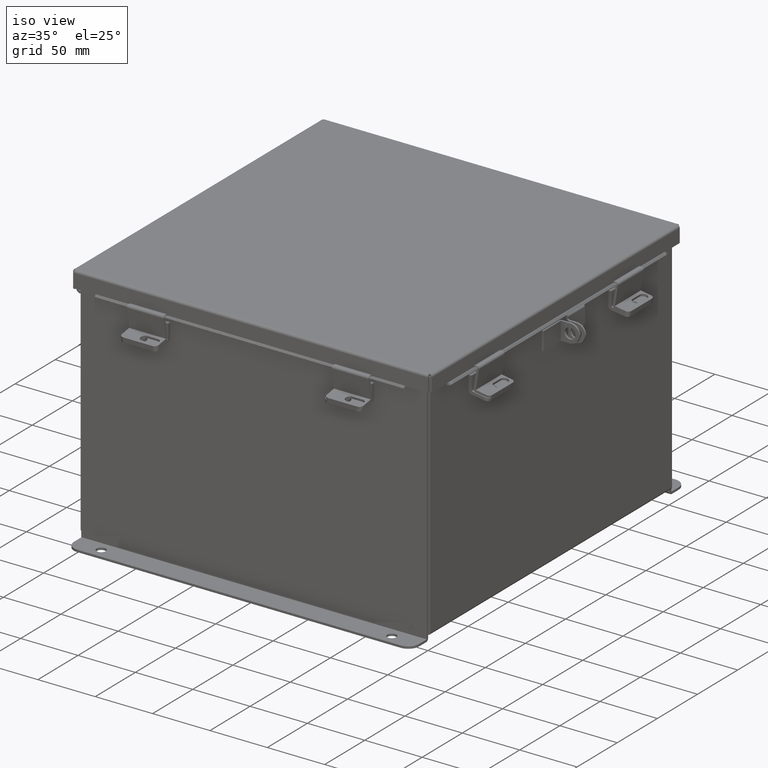
[diagram: clean part render]
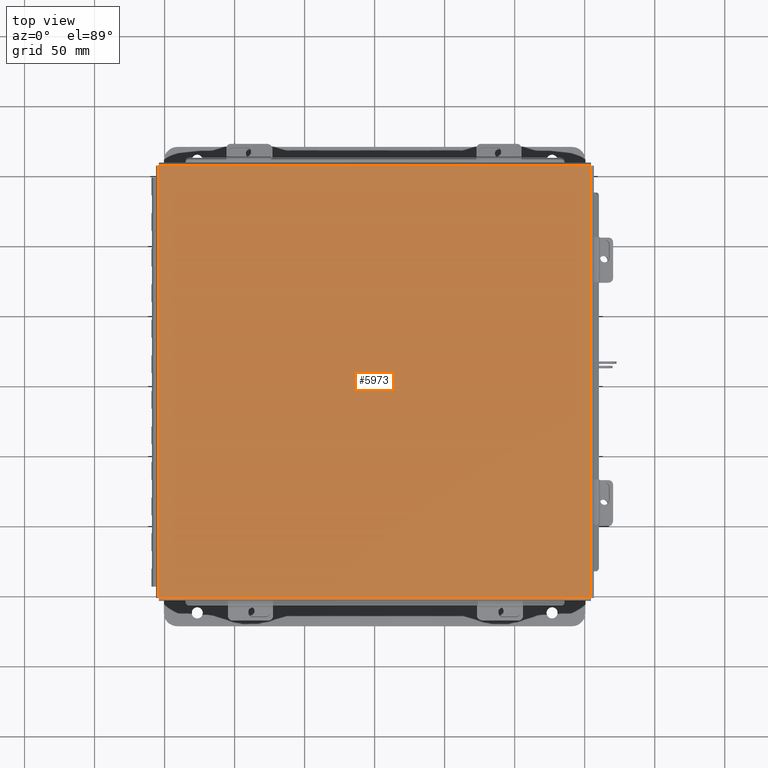
[diagram: tour spotlight — one face highlighted and labeled with its STEP entity id]
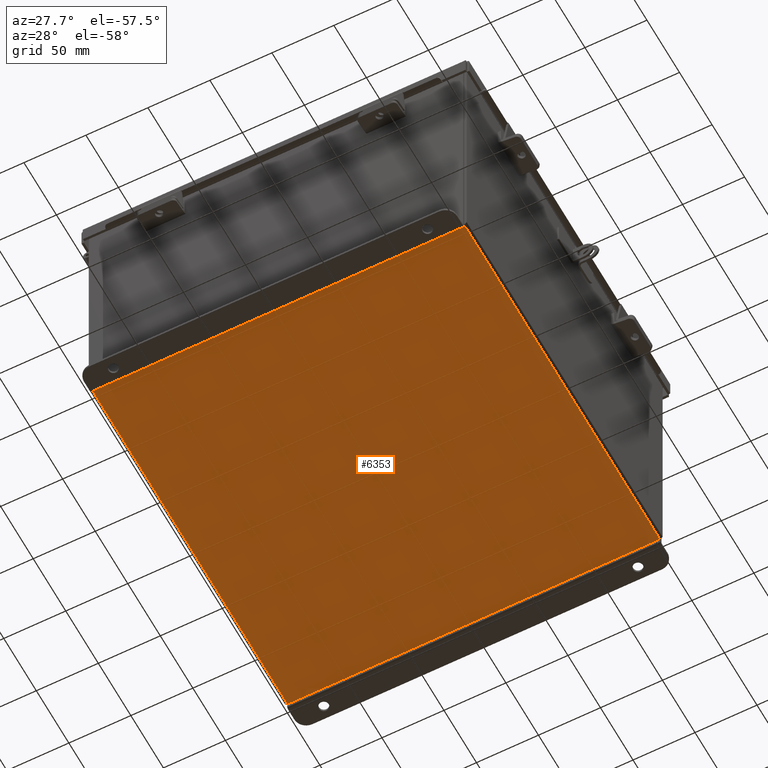
[diagram: tour spotlight — one face highlighted and labeled with its STEP entity id]
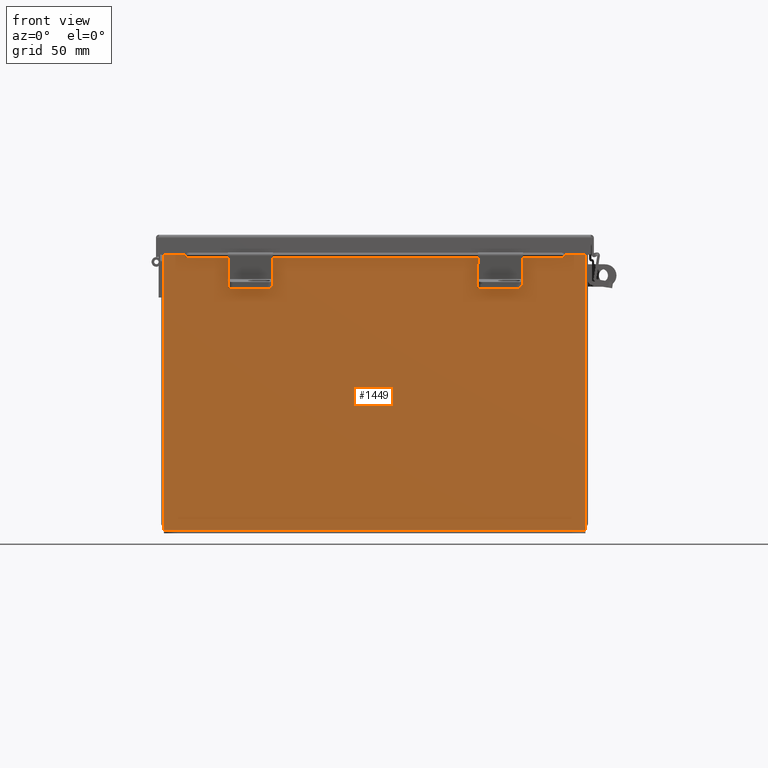
[diagram: tour spotlight — one face highlighted and labeled with its STEP entity id]
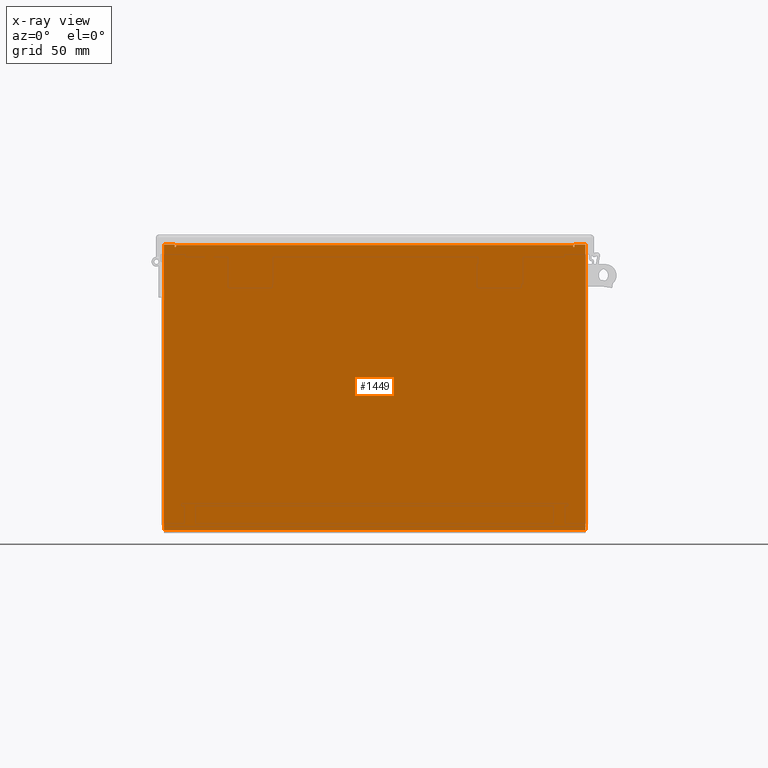
[diagram: x-ray of the same camera — body ghosted, this tour face saturated]
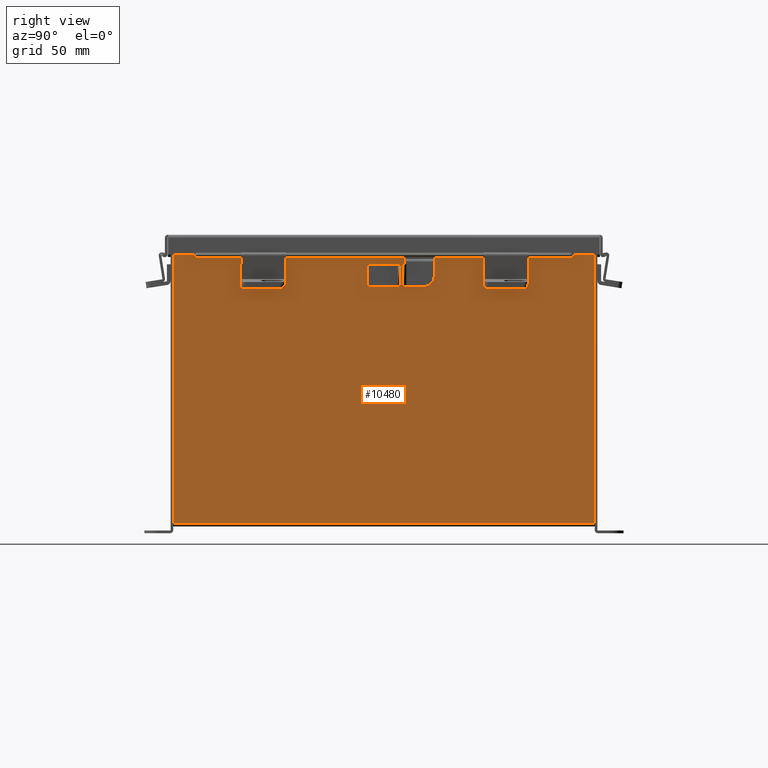
[diagram: tour spotlight — one face highlighted and labeled with its STEP entity id]
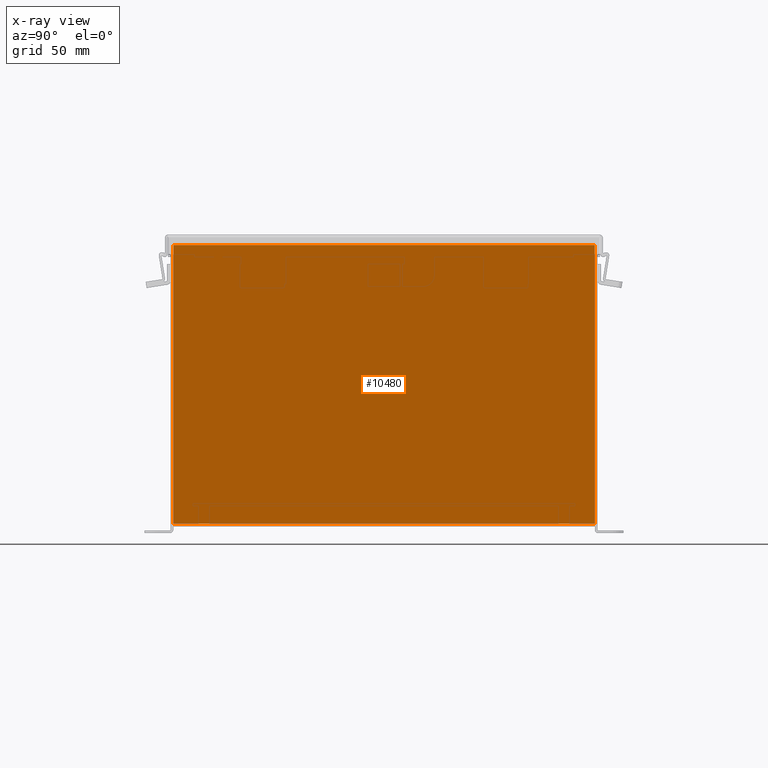
[diagram: x-ray of the same camera — body ghosted, this tour face saturated]
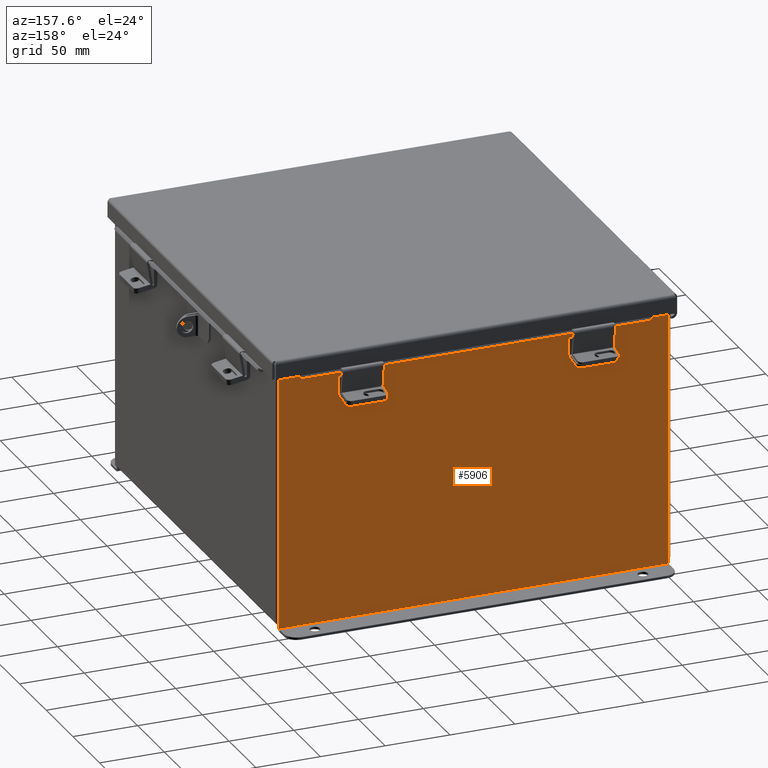
[diagram: tour spotlight — one face highlighted and labeled with its STEP entity id]
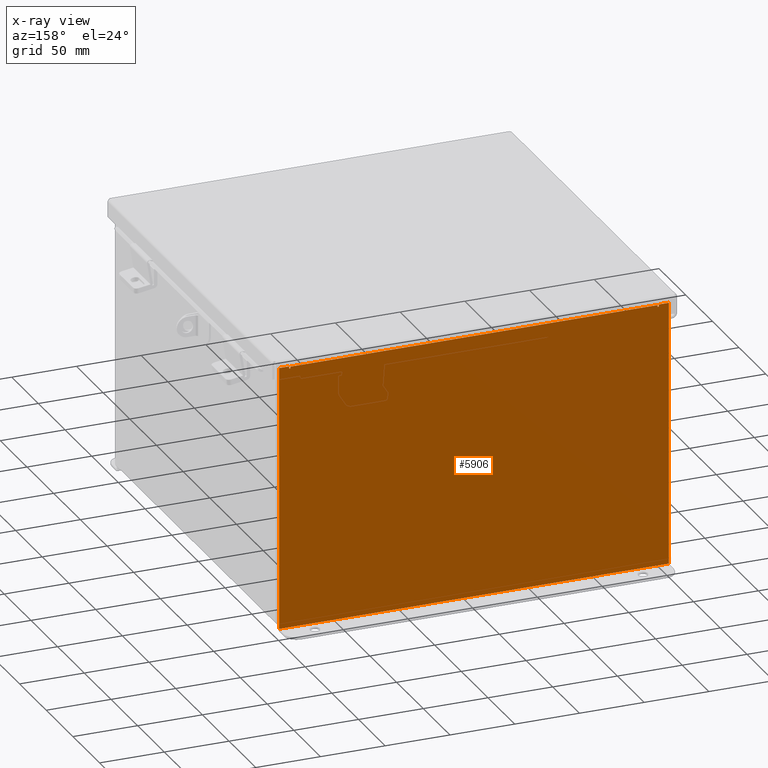
[diagram: x-ray of the same camera — body ghosted, this tour face saturated]
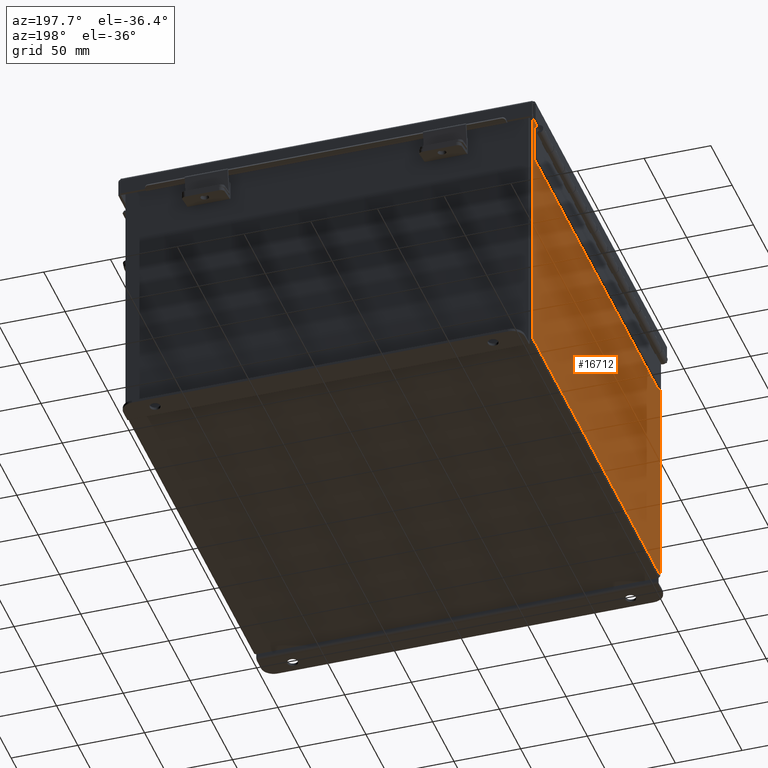
[diagram: tour spotlight — one face highlighted and labeled with its STEP entity id]
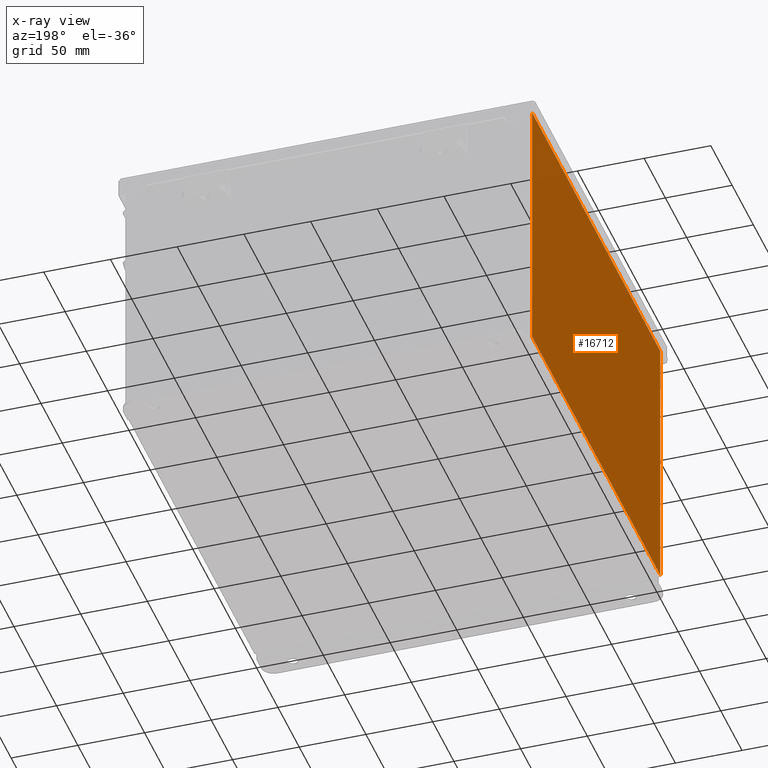
[diagram: x-ray of the same camera — body ghosted, this tour face saturated]
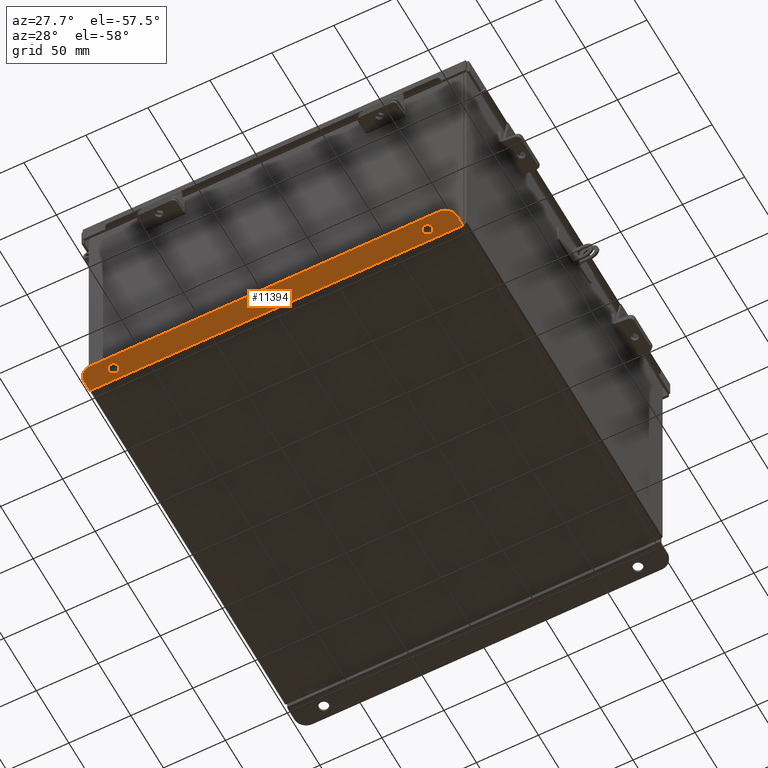
[diagram: tour spotlight — one face highlighted and labeled with its STEP entity id]
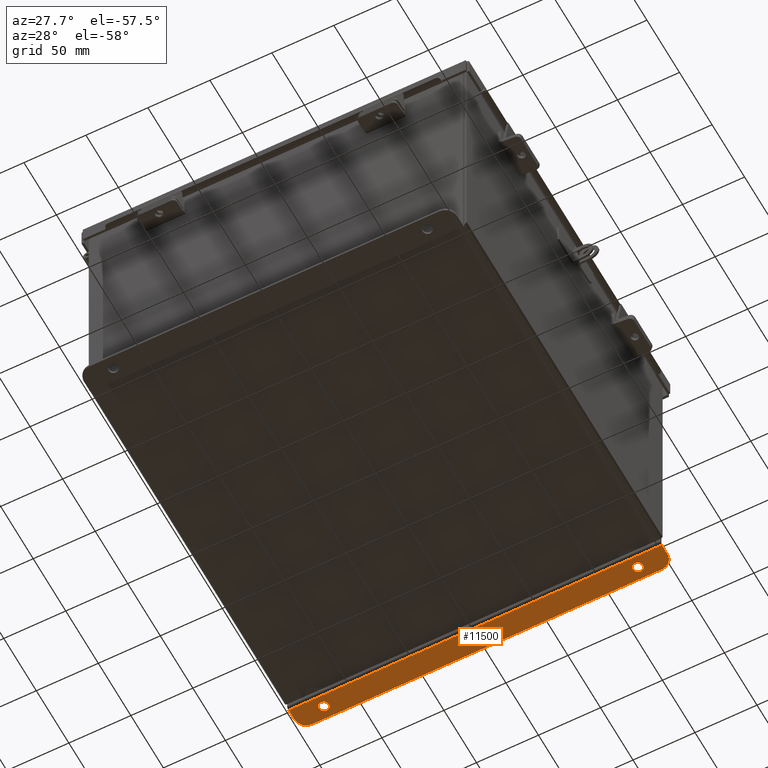
[diagram: tour spotlight — one face highlighted and labeled with its STEP entity id]
A machine part: a face-by-face anatomy tour. The part has 774 B-rep faces; the first image is the clean iso view, then the 8 largest visible faces are spotlighted one at a time (largest first), each with its STEP entity span.

Face 1 — top view, entity #5973. In plain terms, the highlighted planar face has unit normal (-0, -0, 1).
Definition (entity closure, byte-faithful):
#232 = PLANE ( 'NONE',  #12020 ) ;
#362 = FACE_OUTER_BOUND ( 'NONE', #6355, .T. ) ;
#1324 = EDGE_CURVE ( 'NONE', #12748, #10533, #4740, .T. ) ;
#1585 = DIRECTION ( 'NONE',  ( 0.0000000000000000000, 0.0000000000000000000, -1.000000000000000000 ) ) ;
#2104 = CARTESIAN_POINT ( 'NONE',  ( 6.068550000000000100, 6.074478932188137400, -0.07469999999999994700 ) ) ;
#2284 = LINE ( 'NONE', #3832, #16257 ) ;
#3601 = CARTESIAN_POINT ( 'NONE',  ( -6.074478932188137400, 6.068550000000000100, -0.07469999999999993300 ) ) ;
#3832 = CARTESIAN_POINT ( 'NONE',  ( -6.068550000000000100, -6.074478932188137400, -0.07469999999999993300 ) ) ;
#4740 = LINE ( 'NONE', #2104, #11085 ) ;
#5973 = ADVANCED_FACE ( 'NONE', ( #362 ), #232, .T. ) ;
#6157 = VECTOR ( 'NONE', #15780, 39.37007874015748100 ) ;
#6182 = DIRECTION ( 'NONE',  ( -1.000000000000000000, 0.0000000000000000000, 0.0000000000000000000 ) ) ;
#6206 = LINE ( 'NONE', #7550, #16570 ) ;
#6355 = EDGE_LOOP ( 'NONE', ( #14553, #8966, #7889, #7382 ) ) ;
#7382 = ORIENTED_EDGE ( 'NONE', *, *, #15633, .T. ) ;
#7550 = CARTESIAN_POINT ( 'NONE',  ( 6.074478932188137400, -6.068550000000000100, -0.07469999999999993300 ) ) ;
#7889 = ORIENTED_EDGE ( 'NONE', *, *, #9377, .T. ) ;
#8864 = DIRECTION ( 'NONE',  ( -0.0000000000000000000, -1.000000000000000000, -0.0000000000000000000 ) ) ;
#8966 = ORIENTED_EDGE ( 'NONE', *, *, #1324, .T. ) ;
#9377 = EDGE_CURVE ( 'NONE', #10533, #15985, #6206, .T. ) ;
#10179 = LINE ( 'NONE', #3601, #6157 ) ;
#10220 = CARTESIAN_POINT ( 'NONE',  ( 6.068550000000000100, 6.068550000000000100, -0.07469999999999994700 ) ) ;
#10533 = VERTEX_POINT ( 'NONE', #11225 ) ;
#10844 = EDGE_CURVE ( 'NONE', #16858, #12748, #10179, .T. ) ;
#11064 = DIRECTION ( 'NONE',  ( -1.000000000000000000, 0.0000000000000000000, -0.0000000000000000000 ) ) ;
#11085 = VECTOR ( 'NONE', #8864, 39.37007874015748100 ) ;
#11225 = CARTESIAN_POINT ( 'NONE',  ( 6.068550000000000100, -6.068550000000000100, -0.07469999999999993300 ) ) ;
#11264 = CARTESIAN_POINT ( 'NONE',  ( -6.068550000000000100, -6.068550000000000100, -0.07469999999999993300 ) ) ;
#12020 = AXIS2_PLACEMENT_3D ( 'NONE', #13720, #1585, #11064 ) ;
#12748 = VERTEX_POINT ( 'NONE', #10220 ) ;
#12904 = CARTESIAN_POINT ( 'NONE',  ( -6.068550000000000100, 6.068550000000000100, -0.07469999999999993300 ) ) ;
#13720 = CARTESIAN_POINT ( 'NONE',  ( 0.0000000000000000000, 0.0000000000000000000, -0.07470000000000000300 ) ) ;
#14553 = ORIENTED_EDGE ( 'NONE', *, *, #10844, .T. ) ;
#14647 = DIRECTION ( 'NONE',  ( -0.0000000000000000000, 1.000000000000000000, -0.0000000000000000000 ) ) ;
#15633 = EDGE_CURVE ( 'NONE', #15985, #16858, #2284, .T. ) ;
#15780 = DIRECTION ( 'NONE',  ( 1.000000000000000000, 0.0000000000000000000, 0.0000000000000000000 ) ) ;
#15985 = VERTEX_POINT ( 'NONE', #11264 ) ;
#16257 = VECTOR ( 'NONE', #14647, 39.37007874015748100 ) ;
#16570 = VECTOR ( 'NONE', #6182, 39.37007874015748100 ) ;
#16858 = VERTEX_POINT ( 'NONE', #12904 ) ;

Face 2 — auxiliary view, entity #6353. In plain terms, the highlighted planar face has unit normal (0, 0, -1).
Definition (entity closure, byte-faithful):
#281 = CARTESIAN_POINT ( 'NONE',  ( 5.912300000000002800, 5.925299999999997300, -0.07469999999999994700 ) ) ;
#510 = LINE ( 'NONE', #14644, #14489 ) ;
#2279 = AXIS2_PLACEMENT_3D ( 'NONE', #11233, #13998, #5905 ) ;
#2299 = EDGE_CURVE ( 'NONE', #12551, #9221, #17333, .T. ) ;
#4374 = EDGE_CURVE ( 'NONE', #4593, #9221, #4552, .T. ) ;
#4538 = PLANE ( 'NONE',  #2279 ) ;
#4552 = LINE ( 'NONE', #14986, #10906 ) ;
#4584 = CARTESIAN_POINT ( 'NONE',  ( -5.912299999999998300, 5.925300000000000000, -0.07470000000000000300 ) ) ;
#4593 = VERTEX_POINT ( 'NONE', #8705 ) ;
#4705 = ORIENTED_EDGE ( 'NONE', *, *, #14793, .F. ) ;
#5761 = ORIENTED_EDGE ( 'NONE', *, *, #8545, .T. ) ;
#5905 = DIRECTION ( 'NONE',  ( -1.000000000000000000, 0.0000000000000000000, -0.0000000000000000000 ) ) ;
#6353 = ADVANCED_FACE ( 'NONE', ( #9236 ), #4538, .T. ) ;
#6893 = DIRECTION ( 'NONE',  ( -0.0000000000000000000, 1.000000000000000000, -0.0000000000000000000 ) ) ;
#7399 = VECTOR ( 'NONE', #7906, 39.37007874015748100 ) ;
#7906 = DIRECTION ( 'NONE',  ( 1.000000000000000000, 0.0000000000000000000, 0.0000000000000000000 ) ) ;
#8545 = EDGE_CURVE ( 'NONE', #12551, #17033, #510, .T. ) ;
#8705 = CARTESIAN_POINT ( 'NONE',  ( -5.912299999999998300, -5.925299999999999100, -0.07469999999999994700 ) ) ;
#8782 = CARTESIAN_POINT ( 'NONE',  ( -5.999999999999998200, 5.925300000000000000, -0.07470000000000000300 ) ) ;
#9221 = VERTEX_POINT ( 'NONE', #4584 ) ;
#9236 = FACE_OUTER_BOUND ( 'NONE', #16554, .T. ) ;
#10906 = VECTOR ( 'NONE', #6893, 39.37007874015748100 ) ;
#11233 = CARTESIAN_POINT ( 'NONE',  ( 0.0000000000000000000, 0.0000000000000000000, -0.07470000000000000300 ) ) ;
#12551 = VERTEX_POINT ( 'NONE', #281 ) ;
#13714 = VECTOR ( 'NONE', #15515, 39.37007874015748100 ) ;
#13998 = DIRECTION ( 'NONE',  ( 0.0000000000000000000, 0.0000000000000000000, -1.000000000000000000 ) ) ;
#14171 = LINE ( 'NONE', #17381, #7399 ) ;
#14489 = VECTOR ( 'NONE', #16013, 39.37007874015748100 ) ;
#14644 = CARTESIAN_POINT ( 'NONE',  ( 5.912300000000002800, 5.925300000000000000, -0.07469999999999994700 ) ) ;
#14793 = EDGE_CURVE ( 'NONE', #4593, #17033, #14171, .T. ) ;
#14986 = CARTESIAN_POINT ( 'NONE',  ( -5.912299999999998300, -5.925300000000000000, -0.07469999999999994700 ) ) ;
#15515 = DIRECTION ( 'NONE',  ( -1.000000000000000000, -0.0000000000000000000, -0.0000000000000000000 ) ) ;
#16013 = DIRECTION ( 'NONE',  ( -0.0000000000000000000, -1.000000000000000000, -0.0000000000000000000 ) ) ;
#16038 = CARTESIAN_POINT ( 'NONE',  ( 5.912300000000002800, -5.925300000000000000, -0.07470000000000000300 ) ) ;
#16087 = ORIENTED_EDGE ( 'NONE', *, *, #4374, .T. ) ;
#16554 = EDGE_LOOP ( 'NONE', ( #17082, #5761, #4705, #16087 ) ) ;
#17033 = VERTEX_POINT ( 'NONE', #16038 ) ;
#17082 = ORIENTED_EDGE ( 'NONE', *, *, #2299, .F. ) ;
#17333 = LINE ( 'NONE', #8782, #13714 ) ;
#17381 = CARTESIAN_POINT ( 'NONE',  ( -5.999999999999998200, -5.925300000000000000, -0.07470000000000000300 ) ) ;

Face 3 — front view, entity #1449. An x-ray twin of the same camera follows (body ghosted, this face saturated) — the face is partly hidden behind the body. In plain terms, the highlighted planar face has unit normal (-0, 1, -0).
Definition (entity closure, byte-faithful):
#18 = VERTEX_POINT ( 'NONE', #15974 ) ;
#151 = DIRECTION ( 'NONE',  ( 1.000000000000000000, 0.0000000000000000000, 0.0000000000000000000 ) ) ;
#256 = ORIENTED_EDGE ( 'NONE', *, *, #5677, .F. ) ;
#581 = EDGE_CURVE ( 'NONE', #8933, #12550, #7725, .T. ) ;
#1387 = VECTOR ( 'NONE', #1625, 39.37007874015748100 ) ;
#1449 = ADVANCED_FACE ( 'NONE', ( #9801 ), #14470, .F. ) ;
#1510 = VERTEX_POINT ( 'NONE', #3944 ) ;
#1625 = DIRECTION ( 'NONE',  ( 0.0000000000000000000, 0.0000000000000000000, 1.000000000000000000 ) ) ;
#1640 = ORIENTED_EDGE ( 'NONE', *, *, #10743, .F. ) ;
#2026 = CARTESIAN_POINT ( 'NONE',  ( -5.925300000000000000, -9.177301853715884100E-017, -4.099299999999999500 ) ) ;
#2309 = DIRECTION ( 'NONE',  ( -2.170286390199955400E-014, 0.0000000000000000000, -1.000000000000000000 ) ) ;
#2362 = CARTESIAN_POINT ( 'NONE',  ( 5.925299999999999100, 0.0000000000000000000, 3.925299999999999600 ) ) ;
#2415 = CARTESIAN_POINT ( 'NONE',  ( 5.600974999999998300, 0.0000000000000000000, 3.874949999999998300 ) ) ;
#3083 = CARTESIAN_POINT ( 'NONE',  ( -5.582300000000000900, 2.287922694693820400E-015, 3.912299999999998800 ) ) ;
#3103 = VECTOR ( 'NONE', #4297, 39.37007874015748100 ) ;
#3219 = ORIENTED_EDGE ( 'NONE', *, *, #3624, .T. ) ;
#3384 = VERTEX_POINT ( 'NONE', #7683 ) ;
#3624 = EDGE_CURVE ( 'NONE', #14027, #12048, #10720, .T. ) ;
#3751 = EDGE_CURVE ( 'NONE', #17506, #12898, #6288, .T. ) ;
#3780 = DIRECTION ( 'NONE',  ( -0.0000000000000000000, 1.000000000000000000, -0.0000000000000000000 ) ) ;
#3802 = DIRECTION ( 'NONE',  ( 0.0000000000000000000, 0.0000000000000000000, -1.000000000000000000 ) ) ;
#3944 = CARTESIAN_POINT ( 'NONE',  ( 5.582299999999999200, 0.0000000000000000000, 3.874949999999998300 ) ) ;
#4063 = CARTESIAN_POINT ( 'NONE',  ( -5.925300000000001800, 0.0000000000000000000, 3.925299999999999600 ) ) ;
#4079 = ORIENTED_EDGE ( 'NONE', *, *, #8691, .T. ) ;
#4238 = ORIENTED_EDGE ( 'NONE', *, *, #11906, .T. ) ;
#4249 = LINE ( 'NONE', #16920, #14623 ) ;
#4297 = DIRECTION ( 'NONE',  ( -0.0000000000000000000, -0.0000000000000000000, 1.000000000000000000 ) ) ;
#4489 = EDGE_CURVE ( 'NONE', #18, #3384, #6036, .T. ) ;
#4652 = CARTESIAN_POINT ( 'NONE',  ( -5.619650000000000000, 0.0000000000000000000, 3.874949999999998300 ) ) ;
#4716 = AXIS2_PLACEMENT_3D ( 'NONE', #5013, #17371, #9257 ) ;
#5013 = CARTESIAN_POINT ( 'NONE',  ( 0.0000000000000000000, 0.0000000000000000000, 0.0000000000000000000 ) ) ;
#5677 = EDGE_CURVE ( 'NONE', #14027, #15048, #9051, .T. ) ;
#5739 = CARTESIAN_POINT ( 'NONE',  ( -5.925300000000001800, -9.177301853715884100E-017, -4.099299999999999500 ) ) ;
#5770 = ORIENTED_EDGE ( 'NONE', *, *, #4489, .T. ) ;
#5976 = CARTESIAN_POINT ( 'NONE',  ( 5.619650000000000000, 0.0000000000000000000, 3.925299999999999600 ) ) ;
#6036 = LINE ( 'NONE', #3083, #16409 ) ;
#6288 = LINE ( 'NONE', #11105, #1387 ) ;
#6347 = CARTESIAN_POINT ( 'NONE',  ( 5.619649999999914800, -0.0000000000000000000, -1.219624991268699400E-013 ) ) ;
#6675 = CARTESIAN_POINT ( 'NONE',  ( -5.925300000000001800, 0.0000000000000000000, 3.925299999999999600 ) ) ;
#6735 = DIRECTION ( 'NONE',  ( 0.0000000000000000000, 0.0000000000000000000, -1.000000000000000000 ) ) ;
#6824 = EDGE_CURVE ( 'NONE', #8933, #8079, #10319, .T. ) ;
#6900 = CARTESIAN_POINT ( 'NONE',  ( -5.925300000000001800, 0.0000000000000000000, 3.925299999999999600 ) ) ;
#7106 = DIRECTION ( 'NONE',  ( 1.000000000000000000, -0.0000000000000000000, -0.0000000000000000000 ) ) ;
#7278 = EDGE_LOOP ( 'NONE', ( #13127, #8833, #14269, #5770, #1640, #12006, #256, #3219, #4238, #8579, #14307, #4079 ) ) ;
#7683 = CARTESIAN_POINT ( 'NONE',  ( 5.582299999999999200, 0.0000000000000000000, 3.912299999999998800 ) ) ;
#7725 = LINE ( 'NONE', #5739, #14912 ) ;
#7935 = CARTESIAN_POINT ( 'NONE',  ( -5.582300000000000000, -0.0000000000000000000, 3.874949999999998300 ) ) ;
#8079 = VERTEX_POINT ( 'NONE', #6675 ) ;
#8394 = CARTESIAN_POINT ( 'NONE',  ( 5.925299999999999100, -9.177301853715884100E-017, -4.099299999999999500 ) ) ;
#8474 = DIRECTION ( 'NONE',  ( 1.000000000000000000, 0.0000000000000000000, 0.0000000000000000000 ) ) ;
#8579 = ORIENTED_EDGE ( 'NONE', *, *, #581, .F. ) ;
#8628 = VECTOR ( 'NONE', #2309, 39.37007874015748100 ) ;
#8691 = EDGE_CURVE ( 'NONE', #8079, #12898, #12375, .T. ) ;
#8833 = ORIENTED_EDGE ( 'NONE', *, *, #10884, .F. ) ;
#8933 = VERTEX_POINT ( 'NONE', #2026 ) ;
#9051 = LINE ( 'NONE', #6347, #8628 ) ;
#9180 = VERTEX_POINT ( 'NONE', #7935 ) ;
#9257 = DIRECTION ( 'NONE',  ( 0.0000000000000000000, -0.0000000000000000000, -1.000000000000000000 ) ) ;
#9499 = DIRECTION ( 'NONE',  ( 1.000000000000000000, 0.0000000000000000000, 0.0000000000000000000 ) ) ;
#9801 = FACE_OUTER_BOUND ( 'NONE', #7278, .T. ) ;
#10319 = LINE ( 'NONE', #11046, #3103 ) ;
#10720 = LINE ( 'NONE', #4063, #17074 ) ;
#10743 = EDGE_CURVE ( 'NONE', #1510, #3384, #4249, .T. ) ;
#10884 = EDGE_CURVE ( 'NONE', #9180, #17506, #12509, .T. ) ;
#11046 = CARTESIAN_POINT ( 'NONE',  ( -5.925300000000001800, 0.0000000000000000000, 3.925299999999999600 ) ) ;
#11101 = CARTESIAN_POINT ( 'NONE',  ( 5.619649999999998300, 0.0000000000000000000, 3.874949999999998300 ) ) ;
#11105 = CARTESIAN_POINT ( 'NONE',  ( -5.619650000000000000, -0.0000000000000000000, 0.0000000000000000000 ) ) ;
#11607 = DIRECTION ( 'NONE',  ( 0.0000000000000000000, 0.0000000000000000000, -1.000000000000000000 ) ) ;
#11617 = VECTOR ( 'NONE', #11607, 39.37007874015748100 ) ;
#11870 = CARTESIAN_POINT ( 'NONE',  ( -5.600975000000000000, 0.0000000000000000000, 3.874949999999998300 ) ) ;
#11889 = DIRECTION ( 'NONE',  ( -0.0000000000000000000, 1.000000000000000000, -0.0000000000000000000 ) ) ;
#11906 = EDGE_CURVE ( 'NONE', #12048, #12550, #15640, .T. ) ;
#12006 = ORIENTED_EDGE ( 'NONE', *, *, #16993, .F. ) ;
#12047 = VECTOR ( 'NONE', #6735, 39.37007874015748100 ) ;
#12048 = VERTEX_POINT ( 'NONE', #2362 ) ;
#12375 = LINE ( 'NONE', #6900, #16814 ) ;
#12509 = CIRCLE ( 'NONE', #14886, 0.01867500000000003900 ) ;
#12550 = VERTEX_POINT ( 'NONE', #8394 ) ;
#12898 = VERTEX_POINT ( 'NONE', #17264 ) ;
#12967 = CARTESIAN_POINT ( 'NONE',  ( 5.925299999999999100, 0.0000000000000000000, 3.925299999999999600 ) ) ;
#13127 = ORIENTED_EDGE ( 'NONE', *, *, #3751, .F. ) ;
#13229 = DIRECTION ( 'NONE',  ( 0.0000000000000000000, 0.0000000000000000000, -1.000000000000000000 ) ) ;
#14027 = VERTEX_POINT ( 'NONE', #5976 ) ;
#14269 = ORIENTED_EDGE ( 'NONE', *, *, #14909, .F. ) ;
#14307 = ORIENTED_EDGE ( 'NONE', *, *, #6824, .T. ) ;
#14470 = PLANE ( 'NONE',  #4716 ) ;
#14623 = VECTOR ( 'NONE', #15609, 39.37007874015748100 ) ;
#14886 = AXIS2_PLACEMENT_3D ( 'NONE', #11870, #3780, #13229 ) ;
#14909 = EDGE_CURVE ( 'NONE', #18, #9180, #16073, .T. ) ;
#14912 = VECTOR ( 'NONE', #7106, 39.37007874015748100 ) ;
#15048 = VERTEX_POINT ( 'NONE', #11101 ) ;
#15581 = CIRCLE ( 'NONE', #16231, 0.01867500000000003900 ) ;
#15609 = DIRECTION ( 'NONE',  ( 0.0000000000000000000, 0.0000000000000000000, 1.000000000000000000 ) ) ;
#15640 = LINE ( 'NONE', #12967, #11617 ) ;
#15974 = CARTESIAN_POINT ( 'NONE',  ( -5.582300000000000000, 2.287922694693820400E-015, 3.912299999999998800 ) ) ;
#16073 = LINE ( 'NONE', #16183, #12047 ) ;
#16183 = CARTESIAN_POINT ( 'NONE',  ( -5.582300000000000000, -0.0000000000000000000, 0.0000000000000000000 ) ) ;
#16231 = AXIS2_PLACEMENT_3D ( 'NONE', #2415, #11889, #3802 ) ;
#16409 = VECTOR ( 'NONE', #8474, 39.37007874015748100 ) ;
#16814 = VECTOR ( 'NONE', #151, 39.37007874015748100 ) ;
#16920 = CARTESIAN_POINT ( 'NONE',  ( 5.582299999999999200, 0.0000000000000000000, 0.0000000000000000000 ) ) ;
#16993 = EDGE_CURVE ( 'NONE', #15048, #1510, #15581, .T. ) ;
#17074 = VECTOR ( 'NONE', #9499, 39.37007874015748100 ) ;
#17264 = CARTESIAN_POINT ( 'NONE',  ( -5.619650000000000000, 0.0000000000000000000, 3.925299999999999600 ) ) ;
#17371 = DIRECTION ( 'NONE',  ( 0.0000000000000000000, -1.000000000000000000, 0.0000000000000000000 ) ) ;
#17506 = VERTEX_POINT ( 'NONE', #4652 ) ;

Face 4 — right view, entity #10480. An x-ray twin of the same camera follows (body ghosted, this face saturated) — the face is partly hidden behind the body. In plain terms, the highlighted planar face has unit normal (-1, 0, 0).
Definition (entity closure, byte-faithful):
#89 = LINE ( 'NONE', #14765, #17243 ) ;
#257 = CARTESIAN_POINT ( 'NONE',  ( 6.000000000000002700, 5.925299999999998200, 0.01299999999999984700 ) ) ;
#345 = DIRECTION ( 'NONE',  ( 3.479795166820705900E-015, 0.0000000000000000000, 1.000000000000000000 ) ) ;
#440 = FACE_OUTER_BOUND ( 'NONE', #10507, .T. ) ;
#2136 = CARTESIAN_POINT ( 'NONE',  ( 6.000000000000002700, 5.925300000000000000, -2.031483144485732100E-014 ) ) ;
#2685 = VECTOR ( 'NONE', #11611, 39.37007874015748100 ) ;
#5514 = CARTESIAN_POINT ( 'NONE',  ( 6.000000000000030200, 5.925299999999997300, 7.837599999999999200 ) ) ;
#5602 = EDGE_CURVE ( 'NONE', #8726, #11539, #10746, .T. ) ;
#6260 = ORIENTED_EDGE ( 'NONE', *, *, #15721, .F. ) ;
#6661 = DIRECTION ( 'NONE',  ( -0.0000000000000000000, -1.000000000000000000, -0.0000000000000000000 ) ) ;
#6873 = VERTEX_POINT ( 'NONE', #11109 ) ;
#8186 = CARTESIAN_POINT ( 'NONE',  ( 6.000000000000030200, -5.925300000000000000, 7.837599999999999200 ) ) ;
#8256 = VECTOR ( 'NONE', #12831, 39.37007874015748100 ) ;
#8449 = DIRECTION ( 'NONE',  ( -1.000000000000000000, 0.0000000000000000000, 3.479795166820705900E-015 ) ) ;
#8524 = ORIENTED_EDGE ( 'NONE', *, *, #8572, .T. ) ;
#8572 = EDGE_CURVE ( 'NONE', #11539, #13102, #89, .T. ) ;
#8726 = VERTEX_POINT ( 'NONE', #257 ) ;
#10111 = CARTESIAN_POINT ( 'NONE',  ( 6.000000000000002700, -5.925300000000000000, -2.113958465693582900E-014 ) ) ;
#10480 = ADVANCED_FACE ( 'NONE', ( #440 ), #13819, .F. ) ;
#10507 = EDGE_LOOP ( 'NONE', ( #8524, #15887, #6260, #15573 ) ) ;
#10674 = EDGE_CURVE ( 'NONE', #13102, #6873, #11874, .T. ) ;
#10744 = DIRECTION ( 'NONE',  ( -0.0000000000000000000, -1.000000000000000000, -0.0000000000000000000 ) ) ;
#10746 = LINE ( 'NONE', #2136, #2685 ) ;
#11109 = CARTESIAN_POINT ( 'NONE',  ( 6.000000000000002700, -5.925300000000000000, 0.01299999999999984700 ) ) ;
#11115 = CARTESIAN_POINT ( 'NONE',  ( 6.000000000000002700, 0.0000000000000000000, -2.113958465693582900E-014 ) ) ;
#11539 = VERTEX_POINT ( 'NONE', #5514 ) ;
#11611 = DIRECTION ( 'NONE',  ( 3.479795166820706300E-015, -1.391918066728282600E-016, 1.000000000000000000 ) ) ;
#11874 = LINE ( 'NONE', #10111, #8256 ) ;
#12831 = DIRECTION ( 'NONE',  ( -3.479795166820706300E-015, 0.0000000000000000000, -1.000000000000000000 ) ) ;
#13102 = VERTEX_POINT ( 'NONE', #8186 ) ;
#13819 = PLANE ( 'NONE',  #17046 ) ;
#14765 = CARTESIAN_POINT ( 'NONE',  ( 6.000000000000030200, 5.925299999999998200, 7.837599999999999200 ) ) ;
#14984 = VECTOR ( 'NONE', #10744, 39.37007874015748100 ) ;
#15411 = LINE ( 'NONE', #16120, #14984 ) ;
#15573 = ORIENTED_EDGE ( 'NONE', *, *, #5602, .T. ) ;
#15721 = EDGE_CURVE ( 'NONE', #8726, #6873, #15411, .T. ) ;
#15887 = ORIENTED_EDGE ( 'NONE', *, *, #10674, .T. ) ;
#16120 = CARTESIAN_POINT ( 'NONE',  ( 6.000000000000002700, -5.925300000000000000, 0.01299999999999984700 ) ) ;
#17046 = AXIS2_PLACEMENT_3D ( 'NONE', #11115, #8449, #345 ) ;
#17243 = VECTOR ( 'NONE', #6661, 39.37007874015748100 ) ;

Face 5 — auxiliary view, entity #5906. An x-ray twin of the same camera follows (body ghosted, this face saturated) — the face is partly hidden behind the body. In plain terms, the highlighted planar face has unit normal (0, -1, 0).
Definition (entity closure, byte-faithful):
#43 = EDGE_CURVE ( 'NONE', #10290, #10862, #8149, .T. ) ;
#110 = ORIENTED_EDGE ( 'NONE', *, *, #12034, .F. ) ;
#949 = LINE ( 'NONE', #13339, #14920 ) ;
#986 = CARTESIAN_POINT ( 'NONE',  ( -5.925300000000001800, 0.0000000000000000000, 3.925299999999999100 ) ) ;
#1156 = EDGE_CURVE ( 'NONE', #16012, #15596, #6442, .T. ) ;
#1715 = VERTEX_POINT ( 'NONE', #4717 ) ;
#1803 = DIRECTION ( 'NONE',  ( 0.0000000000000000000, 0.0000000000000000000, -1.000000000000000000 ) ) ;
#1941 = DIRECTION ( 'NONE',  ( -0.0000000000000000000, -0.0000000000000000000, 1.000000000000000000 ) ) ;
#2757 = CARTESIAN_POINT ( 'NONE',  ( 0.0000000000000000000, 0.0000000000000000000, 0.0000000000000000000 ) ) ;
#2881 = AXIS2_PLACEMENT_3D ( 'NONE', #11055, #2938, #12432 ) ;
#2938 = DIRECTION ( 'NONE',  ( -0.0000000000000000000, 1.000000000000000000, -0.0000000000000000000 ) ) ;
#3227 = EDGE_CURVE ( 'NONE', #14686, #7260, #11793, .T. ) ;
#3314 = CARTESIAN_POINT ( 'NONE',  ( 5.600974999999998300, 0.0000000000000000000, 3.874949999999998300 ) ) ;
#3419 = DIRECTION ( 'NONE',  ( 1.000000000000000000, 0.0000000000000000000, 4.610480471308225700E-017 ) ) ;
#3727 = CARTESIAN_POINT ( 'NONE',  ( 5.619649999999998300, 0.0000000000000000000, 3.874949999999998300 ) ) ;
#3817 = DIRECTION ( 'NONE',  ( 0.0000000000000000000, 0.0000000000000000000, 1.000000000000000000 ) ) ;
#3862 = ORIENTED_EDGE ( 'NONE', *, *, #12520, .T. ) ;
#4157 = VERTEX_POINT ( 'NONE', #14584 ) ;
#4250 = CARTESIAN_POINT ( 'NONE',  ( 5.619649999999914800, -0.0000000000000000000, -1.219624991268699400E-013 ) ) ;
#4666 = DIRECTION ( 'NONE',  ( 0.0000000000000000000, 0.0000000000000000000, -1.000000000000000000 ) ) ;
#4674 = VERTEX_POINT ( 'NONE', #12170 ) ;
#4717 = CARTESIAN_POINT ( 'NONE',  ( 5.925299999999999100, 0.0000000000000000000, 3.925299999999999600 ) ) ;
#4718 = DIRECTION ( 'NONE',  ( 0.0000000000000000000, 0.0000000000000000000, -1.000000000000000000 ) ) ;
#4817 = FACE_OUTER_BOUND ( 'NONE', #9088, .T. ) ;
#4877 = VERTEX_POINT ( 'NONE', #6003 ) ;
#4900 = LINE ( 'NONE', #4250, #12088 ) ;
#5101 = VECTOR ( 'NONE', #3817, 39.37007874015748100 ) ;
#5252 = DIRECTION ( 'NONE',  ( 1.000000000000000000, 8.208677865577646300E-017, -0.0000000000000000000 ) ) ;
#5285 = VERTEX_POINT ( 'NONE', #13677 ) ;
#5685 = DIRECTION ( 'NONE',  ( 1.000000000000000000, 0.0000000000000000000, 4.610480471308225700E-017 ) ) ;
#5884 = CARTESIAN_POINT ( 'NONE',  ( -5.582300000000000000, 2.287922694693820400E-015, 3.912299999999998800 ) ) ;
#5906 = ADVANCED_FACE ( 'NONE', ( #4817 ), #14973, .F. ) ;
#6003 = CARTESIAN_POINT ( 'NONE',  ( -5.619650000000000000, 0.0000000000000000000, 3.874949999999998300 ) ) ;
#6222 = ORIENTED_EDGE ( 'NONE', *, *, #10387, .F. ) ;
#6256 = ORIENTED_EDGE ( 'NONE', *, *, #12502, .F. ) ;
#6442 = LINE ( 'NONE', #9922, #6854 ) ;
#6582 = AXIS2_PLACEMENT_3D ( 'NONE', #2757, #6869, #16324 ) ;
#6607 = CARTESIAN_POINT ( 'NONE',  ( 5.925299999999999100, 1.237868622129119300E-016, -4.099300000000000400 ) ) ;
#6825 = CARTESIAN_POINT ( 'NONE',  ( -5.582300000000000900, 2.287922694693820400E-015, 3.912299999999998800 ) ) ;
#6834 = ORIENTED_EDGE ( 'NONE', *, *, #1156, .F. ) ;
#6854 = VECTOR ( 'NONE', #1803, 39.37007874015748100 ) ;
#6869 = DIRECTION ( 'NONE',  ( 0.0000000000000000000, -1.000000000000000000, 0.0000000000000000000 ) ) ;
#6989 = ORIENTED_EDGE ( 'NONE', *, *, #13641, .F. ) ;
#7087 = VECTOR ( 'NONE', #3419, 39.37007874015748100 ) ;
#7260 = VERTEX_POINT ( 'NONE', #9193 ) ;
#7414 = EDGE_CURVE ( 'NONE', #16012, #5285, #9437, .T. ) ;
#7878 = CARTESIAN_POINT ( 'NONE',  ( 5.582299999999999200, 0.0000000000000000000, 0.0000000000000000000 ) ) ;
#8021 = EDGE_CURVE ( 'NONE', #10290, #12966, #949, .T. ) ;
#8149 = LINE ( 'NONE', #13083, #15355 ) ;
#8333 = EDGE_CURVE ( 'NONE', #4157, #1715, #14707, .T. ) ;
#8356 = VECTOR ( 'NONE', #4718, 39.37007874015748100 ) ;
#8592 = VECTOR ( 'NONE', #9482, 39.37007874015748100 ) ;
#8740 = CARTESIAN_POINT ( 'NONE',  ( 5.925299999999999100, 0.0000000000000000000, 3.925299999999999600 ) ) ;
#8793 = LINE ( 'NONE', #8740, #8356 ) ;
#8898 = ORIENTED_EDGE ( 'NONE', *, *, #7414, .T. ) ;
#9088 = EDGE_LOOP ( 'NONE', ( #110, #6256, #6834, #8898, #6989, #9877, #6222, #17199, #16688, #16225, #15279, #3862 ) ) ;
#9106 = CARTESIAN_POINT ( 'NONE',  ( -5.619650000000000000, -0.0000000000000000000, 0.0000000000000000000 ) ) ;
#9139 = CARTESIAN_POINT ( 'NONE',  ( -5.582300000000000000, -0.0000000000000000000, 3.874949999999998300 ) ) ;
#9193 = CARTESIAN_POINT ( 'NONE',  ( 5.582299999999999200, 0.0000000000000000000, 3.874949999999998300 ) ) ;
#9437 = LINE ( 'NONE', #6825, #8592 ) ;
#9482 = DIRECTION ( 'NONE',  ( 1.000000000000000000, 0.0000000000000000000, 0.0000000000000000000 ) ) ;
#9697 = CARTESIAN_POINT ( 'NONE',  ( -5.925300000000001800, 0.0000000000000000000, 3.925299999999999100 ) ) ;
#9877 = ORIENTED_EDGE ( 'NONE', *, *, #3227, .F. ) ;
#9922 = CARTESIAN_POINT ( 'NONE',  ( -5.582300000000000000, -0.0000000000000000000, 0.0000000000000000000 ) ) ;
#10290 = VERTEX_POINT ( 'NONE', #10758 ) ;
#10387 = EDGE_CURVE ( 'NONE', #4157, #14686, #4900, .T. ) ;
#10758 = CARTESIAN_POINT ( 'NONE',  ( -5.925300000000000000, -8.494339855299818500E-016, -4.099300000000000400 ) ) ;
#10862 = VERTEX_POINT ( 'NONE', #986 ) ;
#11055 = CARTESIAN_POINT ( 'NONE',  ( -5.600975000000000000, 0.0000000000000000000, 3.874949999999998300 ) ) ;
#11520 = CARTESIAN_POINT ( 'NONE',  ( -5.925300000000001800, 0.0000000000000000000, 3.925299999999999100 ) ) ;
#11793 = CIRCLE ( 'NONE', #13556, 0.01867500000000003900 ) ;
#12034 = EDGE_CURVE ( 'NONE', #4877, #4674, #14379, .T. ) ;
#12088 = VECTOR ( 'NONE', #13708, 39.37007874015748100 ) ;
#12170 = CARTESIAN_POINT ( 'NONE',  ( -5.619650000000000000, 0.0000000000000000000, 3.925299999999999100 ) ) ;
#12432 = DIRECTION ( 'NONE',  ( 0.0000000000000000000, 0.0000000000000000000, -1.000000000000000000 ) ) ;
#12502 = EDGE_CURVE ( 'NONE', #15596, #4877, #16357, .T. ) ;
#12520 = EDGE_CURVE ( 'NONE', #10862, #4674, #17211, .T. ) ;
#12726 = LINE ( 'NONE', #7878, #5101 ) ;
#12775 = DIRECTION ( 'NONE',  ( -0.0000000000000000000, 1.000000000000000000, -0.0000000000000000000 ) ) ;
#12966 = VERTEX_POINT ( 'NONE', #6607 ) ;
#13083 = CARTESIAN_POINT ( 'NONE',  ( -5.925300000000001800, 0.0000000000000000000, 3.925299999999999100 ) ) ;
#13339 = CARTESIAN_POINT ( 'NONE',  ( -5.925300000000001800, -8.494339855299818500E-016, -4.099300000000000400 ) ) ;
#13556 = AXIS2_PLACEMENT_3D ( 'NONE', #3314, #12775, #4666 ) ;
#13587 = VECTOR ( 'NONE', #5685, 39.37007874015748100 ) ;
#13641 = EDGE_CURVE ( 'NONE', #7260, #5285, #12726, .T. ) ;
#13677 = CARTESIAN_POINT ( 'NONE',  ( 5.582299999999999200, 0.0000000000000000000, 3.912299999999998800 ) ) ;
#13708 = DIRECTION ( 'NONE',  ( -2.170286390199955400E-014, 0.0000000000000000000, -1.000000000000000000 ) ) ;
#13934 = VECTOR ( 'NONE', #17227, 39.37007874015748100 ) ;
#14379 = LINE ( 'NONE', #9106, #13934 ) ;
#14584 = CARTESIAN_POINT ( 'NONE',  ( 5.619650000000000000, 0.0000000000000000000, 3.925299999999999600 ) ) ;
#14686 = VERTEX_POINT ( 'NONE', #3727 ) ;
#14707 = LINE ( 'NONE', #11520, #7087 ) ;
#14920 = VECTOR ( 'NONE', #5252, 39.37007874015748100 ) ;
#14973 = PLANE ( 'NONE',  #6582 ) ;
#15279 = ORIENTED_EDGE ( 'NONE', *, *, #43, .T. ) ;
#15355 = VECTOR ( 'NONE', #1941, 39.37007874015748100 ) ;
#15596 = VERTEX_POINT ( 'NONE', #9139 ) ;
#16012 = VERTEX_POINT ( 'NONE', #5884 ) ;
#16225 = ORIENTED_EDGE ( 'NONE', *, *, #8021, .F. ) ;
#16324 = DIRECTION ( 'NONE',  ( 0.0000000000000000000, -0.0000000000000000000, -1.000000000000000000 ) ) ;
#16357 = CIRCLE ( 'NONE', #2881, 0.01867500000000003900 ) ;
#16688 = ORIENTED_EDGE ( 'NONE', *, *, #17541, .T. ) ;
#17199 = ORIENTED_EDGE ( 'NONE', *, *, #8333, .T. ) ;
#17211 = LINE ( 'NONE', #9697, #13587 ) ;
#17227 = DIRECTION ( 'NONE',  ( 0.0000000000000000000, 0.0000000000000000000, 1.000000000000000000 ) ) ;
#17541 = EDGE_CURVE ( 'NONE', #1715, #12966, #8793, .T. ) ;

Face 6 — auxiliary view, entity #16712. An x-ray twin of the same camera follows (body ghosted, this face saturated) — the face is partly hidden behind the body. In plain terms, the highlighted planar face has unit normal (1, 0, 0).
Definition (entity closure, byte-faithful):
#213 = DIRECTION ( 'NONE',  ( 3.479795166820706300E-015, 0.0000000000000000000, -1.000000000000000000 ) ) ;
#528 = CARTESIAN_POINT ( 'NONE',  ( -6.000000000000025800, -5.925299999999998200, 7.837599999999999200 ) ) ;
#627 = ORIENTED_EDGE ( 'NONE', *, *, #17101, .T. ) ;
#680 = EDGE_CURVE ( 'NONE', #15811, #12507, #6023, .T. ) ;
#1764 = CARTESIAN_POINT ( 'NONE',  ( -5.999999999999998200, 0.0000000000000000000, -2.113958465693581300E-014 ) ) ;
#2263 = LINE ( 'NONE', #12592, #15816 ) ;
#3131 = DIRECTION ( 'NONE',  ( 3.479795166820705900E-015, 0.0000000000000000000, -1.000000000000000000 ) ) ;
#3708 = CARTESIAN_POINT ( 'NONE',  ( -5.999999999999998200, -5.925299999999999100, 0.01299999999999984700 ) ) ;
#3709 = EDGE_CURVE ( 'NONE', #12507, #9605, #5423, .T. ) ;
#3930 = CARTESIAN_POINT ( 'NONE',  ( -5.999999999999998200, 5.925300000000000000, 0.01299999999999984700 ) ) ;
#5373 = CARTESIAN_POINT ( 'NONE',  ( -5.999999999999998200, -5.925300000000000000, -1.949007823277879200E-014 ) ) ;
#5423 = LINE ( 'NONE', #8314, #12630 ) ;
#6023 = LINE ( 'NONE', #528, #8781 ) ;
#6946 = EDGE_CURVE ( 'NONE', #11310, #9605, #2263, .T. ) ;
#7177 = PLANE ( 'NONE',  #9307 ) ;
#8314 = CARTESIAN_POINT ( 'NONE',  ( -5.999999999999998200, 5.925300000000000000, -2.113958465693581300E-014 ) ) ;
#8557 = DIRECTION ( 'NONE',  ( -0.0000000000000000000, 1.000000000000000000, -0.0000000000000000000 ) ) ;
#8638 = DIRECTION ( 'NONE',  ( 0.0000000000000000000, 1.000000000000000000, 0.0000000000000000000 ) ) ;
#8781 = VECTOR ( 'NONE', #8638, 39.37007874015748100 ) ;
#9307 = AXIS2_PLACEMENT_3D ( 'NONE', #1764, #11247, #3131 ) ;
#9605 = VERTEX_POINT ( 'NONE', #3930 ) ;
#10848 = ORIENTED_EDGE ( 'NONE', *, *, #3709, .T. ) ;
#10917 = CARTESIAN_POINT ( 'NONE',  ( -6.000000000000025800, -5.925299999999997300, 7.837599999999999200 ) ) ;
#11247 = DIRECTION ( 'NONE',  ( 1.000000000000000000, 0.0000000000000000000, 3.479795166820705900E-015 ) ) ;
#11310 = VERTEX_POINT ( 'NONE', #3708 ) ;
#11780 = FACE_OUTER_BOUND ( 'NONE', #12015, .T. ) ;
#12015 = EDGE_LOOP ( 'NONE', ( #17472, #10848, #14622, #627 ) ) ;
#12507 = VERTEX_POINT ( 'NONE', #16443 ) ;
#12592 = CARTESIAN_POINT ( 'NONE',  ( -5.999999999999998200, 5.925300000000000000, 0.01299999999999984700 ) ) ;
#12630 = VECTOR ( 'NONE', #213, 39.37007874015748100 ) ;
#13467 = DIRECTION ( 'NONE',  ( -3.479795166820706300E-015, 2.783836133456565100E-016, 1.000000000000000000 ) ) ;
#14622 = ORIENTED_EDGE ( 'NONE', *, *, #6946, .F. ) ;
#15156 = VECTOR ( 'NONE', #13467, 39.37007874015748100 ) ;
#15811 = VERTEX_POINT ( 'NONE', #10917 ) ;
#15816 = VECTOR ( 'NONE', #8557, 39.37007874015748100 ) ;
#16443 = CARTESIAN_POINT ( 'NONE',  ( -6.000000000000025800, 5.925300000000000000, 7.837599999999999200 ) ) ;
#16712 = ADVANCED_FACE ( 'NONE', ( #11780 ), #7177, .F. ) ;
#17101 = EDGE_CURVE ( 'NONE', #11310, #15811, #17482, .T. ) ;
#17472 = ORIENTED_EDGE ( 'NONE', *, *, #680, .T. ) ;
#17482 = LINE ( 'NONE', #5373, #15156 ) ;

Face 7 — auxiliary view, entity #11394. In plain terms, the highlighted planar face has unit normal (0, -0, 1).
Definition (entity closure, byte-faithful):
#28 = VERTEX_POINT ( 'NONE', #17155 ) ;
#270 = AXIS2_PLACEMENT_3D ( 'NONE', #17364, #2506, #11975 ) ;
#785 = AXIS2_PLACEMENT_3D ( 'NONE', #4412, #13873, #5774 ) ;
#793 = EDGE_CURVE ( 'NONE', #10697, #16591, #8340, .T. ) ;
#861 = VECTOR ( 'NONE', #4385, 39.37007874015748100 ) ;
#974 = EDGE_LOOP ( 'NONE', ( #8830, #15744 ) ) ;
#1248 = DIRECTION ( 'NONE',  ( 0.0000000000000000000, 1.000000000000000000, -3.502369222646487000E-015 ) ) ;
#1475 = CARTESIAN_POINT ( 'NONE',  ( 5.925299999999999100, 0.3627999999999999600, -4.187000000000001200 ) ) ;
#1742 = AXIS2_PLACEMENT_3D ( 'NONE', #2065, #11536, #3438 ) ;
#1811 = CIRCLE ( 'NONE', #785, 0.1560000000000001900 ) ;
#1817 = VECTOR ( 'NONE', #4437, 39.37007874015748100 ) ;
#2065 = CARTESIAN_POINT ( 'NONE',  ( 4.987799999999998200, 0.3627999999999999000, -4.187000000000001200 ) ) ;
#2084 = CARTESIAN_POINT ( 'NONE',  ( -5.550299999999999100, 0.7378000000000000100, -4.187000000000002900 ) ) ;
#2148 = CARTESIAN_POINT ( 'NONE',  ( 5.550299999999999100, 0.7378000000000000100, -4.187000000000002900 ) ) ;
#2506 = DIRECTION ( 'NONE',  ( 0.0000000000000000000, 3.702694488566362300E-015, 1.000000000000000000 ) ) ;
#2585 = EDGE_CURVE ( 'NONE', #13814, #10143, #13485, .T. ) ;
#3366 = DIRECTION ( 'NONE',  ( 0.0000000000000000000, -3.362274453740631800E-015, -1.000000000000000000 ) ) ;
#3438 = DIRECTION ( 'NONE',  ( 0.0000000000000000000, 1.000000000000000000, -3.502369222646487000E-015 ) ) ;
#3785 = EDGE_CURVE ( 'NONE', #4403, #28, #1811, .T. ) ;
#4040 = CIRCLE ( 'NONE', #14337, 0.3750000000000000600 ) ;
#4222 = EDGE_CURVE ( 'NONE', #16591, #10697, #13035, .T. ) ;
#4385 = DIRECTION ( 'NONE',  ( 0.0000000000000000000, 1.000000000000000000, -3.702694488566362300E-015 ) ) ;
#4403 = VERTEX_POINT ( 'NONE', #6954 ) ;
#4412 = CARTESIAN_POINT ( 'NONE',  ( -4.987800000000000900, 0.3627999999999999000, -4.187000000000001200 ) ) ;
#4437 = DIRECTION ( 'NONE',  ( 1.000000000000000000, 0.0000000000000000000, -0.0000000000000000000 ) ) ;
#4446 = CARTESIAN_POINT ( 'NONE',  ( 5.550299999999999100, 0.3627999999999999600, -4.187000000000001200 ) ) ;
#4516 = CIRCLE ( 'NONE', #4521, 0.3750000000000000600 ) ;
#4521 = AXIS2_PLACEMENT_3D ( 'NONE', #4446, #13918, #5816 ) ;
#4581 = ORIENTED_EDGE ( 'NONE', *, *, #10478, .T. ) ;
#4905 = ORIENTED_EDGE ( 'NONE', *, *, #793, .F. ) ;
#4966 = DIRECTION ( 'NONE',  ( 1.000000000000000000, -0.0000000000000000000, -0.0000000000000000000 ) ) ;
#4978 = AXIS2_PLACEMENT_3D ( 'NONE', #17477, #9360, #1248 ) ;
#5006 = AXIS2_PLACEMENT_3D ( 'NONE', #11467, #3366, #12836 ) ;
#5384 = EDGE_CURVE ( 'NONE', #13498, #13814, #4516, .T. ) ;
#5549 = VERTEX_POINT ( 'NONE', #2084 ) ;
#5601 = ORIENTED_EDGE ( 'NONE', *, *, #16708, .T. ) ;
#5774 = DIRECTION ( 'NONE',  ( 0.0000000000000000000, 1.000000000000000000, -3.502369222646487000E-015 ) ) ;
#5816 = DIRECTION ( 'NONE',  ( 0.0000000000000000000, -1.000000000000000000, 4.370956789862820400E-015 ) ) ;
#6055 = VERTEX_POINT ( 'NONE', #16621 ) ;
#6317 = VECTOR ( 'NONE', #9173, 39.37007874015748100 ) ;
#6398 = CARTESIAN_POINT ( 'NONE',  ( 5.925299999999999100, 0.01299999999999968500, -4.187000000000000300 ) ) ;
#6431 = EDGE_CURVE ( 'NONE', #28, #4403, #8822, .T. ) ;
#6954 = CARTESIAN_POINT ( 'NONE',  ( -4.987800000000000900, 0.5188000000000000400, -4.187000000000001200 ) ) ;
#7092 = DIRECTION ( 'NONE',  ( -0.0000000000000000000, -3.702694488566362300E-015, -1.000000000000000000 ) ) ;
#7444 = CARTESIAN_POINT ( 'NONE',  ( 4.987799999999998200, 0.2067999999999997300, -4.187000000000000300 ) ) ;
#7829 = EDGE_CURVE ( 'NONE', #6055, #10143, #13433, .T. ) ;
#8227 = ORIENTED_EDGE ( 'NONE', *, *, #5384, .T. ) ;
#8340 = CIRCLE ( 'NONE', #1742, 0.1560000000000001900 ) ;
#8822 = CIRCLE ( 'NONE', #5006, 0.1560000000000001900 ) ;
#8830 = ORIENTED_EDGE ( 'NONE', *, *, #3785, .F. ) ;
#8888 = FACE_BOUND ( 'NONE', #13381, .T. ) ;
#9173 = DIRECTION ( 'NONE',  ( 0.0000000000000000000, -1.000000000000000000, 3.702694488566362300E-015 ) ) ;
#9302 = FACE_OUTER_BOUND ( 'NONE', #13862, .T. ) ;
#9360 = DIRECTION ( 'NONE',  ( 0.0000000000000000000, -3.362274453740631800E-015, -1.000000000000000000 ) ) ;
#9764 = CARTESIAN_POINT ( 'NONE',  ( -5.925300000000001800, -1.479500033198112000E-014, -4.187000000000000300 ) ) ;
#9949 = CARTESIAN_POINT ( 'NONE',  ( -5.925300000000001800, 0.3628000000000000100, -4.187000000000001200 ) ) ;
#10143 = VERTEX_POINT ( 'NONE', #6398 ) ;
#10478 = EDGE_CURVE ( 'NONE', #11749, #5549, #4040, .T. ) ;
#10697 = VERTEX_POINT ( 'NONE', #7444 ) ;
#10926 = ORIENTED_EDGE ( 'NONE', *, *, #7829, .F. ) ;
#11394 = ADVANCED_FACE ( 'NONE', ( #12498, #8888, #9302 ), #11916, .F. ) ;
#11467 = CARTESIAN_POINT ( 'NONE',  ( -4.987800000000000900, 0.3627999999999999000, -4.187000000000001200 ) ) ;
#11536 = DIRECTION ( 'NONE',  ( 0.0000000000000000000, -3.362274453740631800E-015, -1.000000000000000000 ) ) ;
#11655 = LINE ( 'NONE', #9764, #861 ) ;
#11749 = VERTEX_POINT ( 'NONE', #9949 ) ;
#11916 = PLANE ( 'NONE',  #270 ) ;
#11975 = DIRECTION ( 'NONE',  ( 0.0000000000000000000, -1.000000000000000000, 3.702694488566362300E-015 ) ) ;
#11979 = ORIENTED_EDGE ( 'NONE', *, *, #13923, .T. ) ;
#12498 = FACE_BOUND ( 'NONE', #974, .T. ) ;
#12634 = LINE ( 'NONE', #13904, #1817 ) ;
#12836 = DIRECTION ( 'NONE',  ( 0.0000000000000000000, 1.000000000000000000, -3.502369222646487000E-015 ) ) ;
#13032 = VECTOR ( 'NONE', #4966, 39.37007874015748100 ) ;
#13035 = CIRCLE ( 'NONE', #4978, 0.1560000000000001900 ) ;
#13381 = EDGE_LOOP ( 'NONE', ( #15108, #4905 ) ) ;
#13433 = LINE ( 'NONE', #17097, #13032 ) ;
#13485 = LINE ( 'NONE', #17301, #6317 ) ;
#13498 = VERTEX_POINT ( 'NONE', #2148 ) ;
#13814 = VERTEX_POINT ( 'NONE', #1475 ) ;
#13862 = EDGE_LOOP ( 'NONE', ( #11979, #4581, #5601, #8227, #15040, #10926 ) ) ;
#13873 = DIRECTION ( 'NONE',  ( 0.0000000000000000000, -3.362274453740631800E-015, -1.000000000000000000 ) ) ;
#13904 = CARTESIAN_POINT ( 'NONE',  ( 0.0000000000000000000, 0.7378000000000000100, -4.187000000000002900 ) ) ;
#13918 = DIRECTION ( 'NONE',  ( -0.0000000000000000000, -3.702694488566362300E-015, -1.000000000000000000 ) ) ;
#13923 = EDGE_CURVE ( 'NONE', #6055, #11749, #11655, .T. ) ;
#14337 = AXIS2_PLACEMENT_3D ( 'NONE', #15194, #7092, #16550 ) ;
#15035 = CARTESIAN_POINT ( 'NONE',  ( 4.987799999999998200, 0.5188000000000000400, -4.187000000000001200 ) ) ;
#15040 = ORIENTED_EDGE ( 'NONE', *, *, #2585, .T. ) ;
#15108 = ORIENTED_EDGE ( 'NONE', *, *, #4222, .F. ) ;
#15194 = CARTESIAN_POINT ( 'NONE',  ( -5.550299999999999100, 0.3628000000000000100, -4.187000000000001200 ) ) ;
#15744 = ORIENTED_EDGE ( 'NONE', *, *, #6431, .F. ) ;
#16550 = DIRECTION ( 'NONE',  ( 0.0000000000000000000, -1.000000000000000000, 4.370956789862820400E-015 ) ) ;
#16591 = VERTEX_POINT ( 'NONE', #15035 ) ;
#16621 = CARTESIAN_POINT ( 'NONE',  ( -5.925300000000000000, 0.01300000000000062700, -4.187000000000000300 ) ) ;
#16708 = EDGE_CURVE ( 'NONE', #5549, #13498, #12634, .T. ) ;
#17097 = CARTESIAN_POINT ( 'NONE',  ( 5.925299999999999100, 0.01300000000000062700, -4.187000000000000300 ) ) ;
#17155 = CARTESIAN_POINT ( 'NONE',  ( -4.987800000000000900, 0.2067999999999997300, -4.187000000000000300 ) ) ;
#17301 = CARTESIAN_POINT ( 'NONE',  ( 5.925299999999999100, -1.479500033198112000E-014, -4.187000000000000300 ) ) ;
#17364 = CARTESIAN_POINT ( 'NONE',  ( 0.0000000000000000000, -1.479500033198112000E-014, -4.187000000000000300 ) ) ;
#17477 = CARTESIAN_POINT ( 'NONE',  ( 4.987799999999998200, 0.3627999999999999000, -4.187000000000001200 ) ) ;

Face 8 — auxiliary view, entity #11500. In plain terms, the highlighted planar face has unit normal (0, 0, 1).
Definition (entity closure, byte-faithful):
#301 = DIRECTION ( 'NONE',  ( 0.0000000000000000000, 1.000000000000000000, -3.502369222646487000E-015 ) ) ;
#464 = CARTESIAN_POINT ( 'NONE',  ( -5.550299999999999100, 0.3628000000000000100, -4.187000000000002100 ) ) ;
#1138 = VERTEX_POINT ( 'NONE', #4472 ) ;
#1363 = PLANE ( 'NONE',  #11167 ) ;
#1431 = CARTESIAN_POINT ( 'NONE',  ( -5.925300000000001800, 0.3628000000000000100, -4.187000000000002100 ) ) ;
#1512 = DIRECTION ( 'NONE',  ( 1.000000000000000000, 0.0000000000000000000, -0.0000000000000000000 ) ) ;
#1823 = DIRECTION ( 'NONE',  ( 0.0000000000000000000, -1.000000000000000000, 4.370956789862820400E-015 ) ) ;
#1883 = EDGE_LOOP ( 'NONE', ( #14111, #7918, #16598, #11242, #14335, #2442 ) ) ;
#1981 = VERTEX_POINT ( 'NONE', #2620 ) ;
#2050 = EDGE_CURVE ( 'NONE', #1981, #15552, #3135, .T. ) ;
#2262 = CIRCLE ( 'NONE', #16551, 0.3750000000000000600 ) ;
#2349 = AXIS2_PLACEMENT_3D ( 'NONE', #2964, #12459, #4335 ) ;
#2442 = ORIENTED_EDGE ( 'NONE', *, *, #6085, .T. ) ;
#2475 = CARTESIAN_POINT ( 'NONE',  ( 5.925299999999999100, -1.479500033198112600E-014, -4.187000000000001200 ) ) ;
#2620 = CARTESIAN_POINT ( 'NONE',  ( 5.550299999999999100, 0.7378000000000000100, -4.187000000000003800 ) ) ;
#2825 = VECTOR ( 'NONE', #12095, 39.37007874015748100 ) ;
#2951 = AXIS2_PLACEMENT_3D ( 'NONE', #16513, #8414, #301 ) ;
#2964 = CARTESIAN_POINT ( 'NONE',  ( 4.987799999999998200, 0.3627999999999999000, -4.187000000000002100 ) ) ;
#3135 = CIRCLE ( 'NONE', #14919, 0.3750000000000000600 ) ;
#3308 = EDGE_LOOP ( 'NONE', ( #4093, #6643 ) ) ;
#3498 = EDGE_CURVE ( 'NONE', #8137, #6425, #11996, .T. ) ;
#3598 = FACE_OUTER_BOUND ( 'NONE', #1883, .T. ) ;
#3797 = VERTEX_POINT ( 'NONE', #12528 ) ;
#4045 = ORIENTED_EDGE ( 'NONE', *, *, #5313, .F. ) ;
#4052 = CARTESIAN_POINT ( 'NONE',  ( 5.925299999999999100, 0.01300000000000062700, -4.187000000000001200 ) ) ;
#4093 = ORIENTED_EDGE ( 'NONE', *, *, #16644, .F. ) ;
#4335 = DIRECTION ( 'NONE',  ( 0.0000000000000000000, 1.000000000000000000, -3.502369222646487000E-015 ) ) ;
#4472 = CARTESIAN_POINT ( 'NONE',  ( 5.925299999999999100, 0.01299999999999990200, -4.187000000000001200 ) ) ;
#4549 = VECTOR ( 'NONE', #13284, 39.37007874015748100 ) ;
#5117 = VECTOR ( 'NONE', #8126, 39.37007874015748100 ) ;
#5193 = DIRECTION ( 'NONE',  ( 0.0000000000000000000, -3.702694488566362300E-015, -1.000000000000000000 ) ) ;
#5207 = VERTEX_POINT ( 'NONE', #1431 ) ;
#5313 = EDGE_CURVE ( 'NONE', #9032, #6050, #8543, .T. ) ;
#5465 = CARTESIAN_POINT ( 'NONE',  ( 0.0000000000000000000, -1.479500033198112600E-014, -4.187000000000001200 ) ) ;
#5523 = CARTESIAN_POINT ( 'NONE',  ( 5.550299999999999100, 0.3627999999999999600, -4.187000000000002100 ) ) ;
#5552 = CARTESIAN_POINT ( 'NONE',  ( 0.0000000000000000000, 0.7378000000000000100, -4.187000000000003800 ) ) ;
#5729 = CIRCLE ( 'NONE', #13088, 0.1560000000000001900 ) ;
#6050 = VERTEX_POINT ( 'NONE', #7172 ) ;
#6085 = EDGE_CURVE ( 'NONE', #5207, #3797, #2262, .T. ) ;
#6425 = VERTEX_POINT ( 'NONE', #7391 ) ;
#6454 = LINE ( 'NONE', #17487, #2825 ) ;
#6500 = CARTESIAN_POINT ( 'NONE',  ( 4.987799999999998200, 0.3627999999999999000, -4.187000000000002100 ) ) ;
#6643 = ORIENTED_EDGE ( 'NONE', *, *, #3498, .F. ) ;
#6819 = DIRECTION ( 'NONE',  ( 0.0000000000000000000, 3.702694488566362300E-015, 1.000000000000000000 ) ) ;
#6902 = DIRECTION ( 'NONE',  ( 0.0000000000000000000, -1.000000000000000000, 4.370956789862820400E-015 ) ) ;
#7172 = CARTESIAN_POINT ( 'NONE',  ( 4.987799999999998200, 0.2067999999999997300, -4.187000000000001200 ) ) ;
#7196 = FACE_BOUND ( 'NONE', #3308, .T. ) ;
#7391 = CARTESIAN_POINT ( 'NONE',  ( -4.987800000000000900, 0.5188000000000000400, -4.187000000000002900 ) ) ;
#7588 = VECTOR ( 'NONE', #1512, 39.37007874015748100 ) ;
#7846 = DIRECTION ( 'NONE',  ( 0.0000000000000000000, 1.000000000000000000, -3.502369222646487000E-015 ) ) ;
#7918 = ORIENTED_EDGE ( 'NONE', *, *, #2050, .T. ) ;
#7948 = CARTESIAN_POINT ( 'NONE',  ( -5.925300000000000000, 0.01300000000000008100, -4.187000000000001200 ) ) ;
#7979 = EDGE_CURVE ( 'NONE', #15552, #1138, #11751, .T. ) ;
#8007 = ORIENTED_EDGE ( 'NONE', *, *, #10893, .F. ) ;
#8126 = DIRECTION ( 'NONE',  ( 1.000000000000000000, 4.610480471308228800E-017, -1.707120063075582100E-031 ) ) ;
#8137 = VERTEX_POINT ( 'NONE', #16253 ) ;
#8414 = DIRECTION ( 'NONE',  ( 0.0000000000000000000, -3.702694488566362300E-015, -1.000000000000000000 ) ) ;
#8543 = CIRCLE ( 'NONE', #2349, 0.1560000000000001900 ) ;
#8597 = EDGE_CURVE ( 'NONE', #11421, #5207, #6454, .T. ) ;
#8945 = CARTESIAN_POINT ( 'NONE',  ( 4.987799999999998200, 0.5188000000000000400, -4.187000000000002900 ) ) ;
#9032 = VERTEX_POINT ( 'NONE', #8945 ) ;
#9558 = LINE ( 'NONE', #4052, #5117 ) ;
#9935 = DIRECTION ( 'NONE',  ( -0.0000000000000000000, -3.702694488566362300E-015, -1.000000000000000000 ) ) ;
#10193 = EDGE_LOOP ( 'NONE', ( #4045, #8007 ) ) ;
#10893 = EDGE_CURVE ( 'NONE', #6050, #9032, #5729, .T. ) ;
#11167 = AXIS2_PLACEMENT_3D ( 'NONE', #5465, #6819, #16282 ) ;
#11242 = ORIENTED_EDGE ( 'NONE', *, *, #13073, .F. ) ;
#11421 = VERTEX_POINT ( 'NONE', #7948 ) ;
#11500 = ADVANCED_FACE ( 'NONE', ( #7196, #14390, #3598 ), #1363, .F. ) ;
#11751 = LINE ( 'NONE', #2475, #4549 ) ;
#11996 = CIRCLE ( 'NONE', #16881, 0.1560000000000001900 ) ;
#12095 = DIRECTION ( 'NONE',  ( 0.0000000000000000000, 1.000000000000000000, -3.702694488566362300E-015 ) ) ;
#12459 = DIRECTION ( 'NONE',  ( 0.0000000000000000000, -3.702694488566362300E-015, -1.000000000000000000 ) ) ;
#12480 = EDGE_CURVE ( 'NONE', #3797, #1981, #15202, .T. ) ;
#12528 = CARTESIAN_POINT ( 'NONE',  ( -5.550299999999999100, 0.7378000000000000100, -4.187000000000003800 ) ) ;
#13073 = EDGE_CURVE ( 'NONE', #11421, #1138, #9558, .T. ) ;
#13088 = AXIS2_PLACEMENT_3D ( 'NONE', #6500, #15957, #7846 ) ;
#13284 = DIRECTION ( 'NONE',  ( 0.0000000000000000000, -1.000000000000000000, 3.702694488566362300E-015 ) ) ;
#13286 = CARTESIAN_POINT ( 'NONE',  ( -4.987800000000000900, 0.3627999999999999000, -4.187000000000002100 ) ) ;
#13460 = CIRCLE ( 'NONE', #2951, 0.1560000000000001900 ) ;
#14111 = ORIENTED_EDGE ( 'NONE', *, *, #12480, .T. ) ;
#14335 = ORIENTED_EDGE ( 'NONE', *, *, #8597, .T. ) ;
#14390 = FACE_BOUND ( 'NONE', #10193, .T. ) ;
#14660 = DIRECTION ( 'NONE',  ( 0.0000000000000000000, 1.000000000000000000, -3.502369222646487000E-015 ) ) ;
#14919 = AXIS2_PLACEMENT_3D ( 'NONE', #5523, #14993, #6902 ) ;
#14993 = DIRECTION ( 'NONE',  ( -0.0000000000000000000, -3.702694488566362300E-015, -1.000000000000000000 ) ) ;
#15202 = LINE ( 'NONE', #5552, #7588 ) ;
#15552 = VERTEX_POINT ( 'NONE', #15844 ) ;
#15844 = CARTESIAN_POINT ( 'NONE',  ( 5.925299999999999100, 0.3627999999999999600, -4.187000000000002100 ) ) ;
#15957 = DIRECTION ( 'NONE',  ( 0.0000000000000000000, -3.702694488566362300E-015, -1.000000000000000000 ) ) ;
#16253 = CARTESIAN_POINT ( 'NONE',  ( -4.987800000000000900, 0.2067999999999997300, -4.187000000000001200 ) ) ;
#16282 = DIRECTION ( 'NONE',  ( 0.0000000000000000000, -1.000000000000000000, 3.702694488566362300E-015 ) ) ;
#16513 = CARTESIAN_POINT ( 'NONE',  ( -4.987800000000000900, 0.3627999999999999000, -4.187000000000002100 ) ) ;
#16551 = AXIS2_PLACEMENT_3D ( 'NONE', #464, #9935, #1823 ) ;
#16598 = ORIENTED_EDGE ( 'NONE', *, *, #7979, .T. ) ;
#16644 = EDGE_CURVE ( 'NONE', #6425, #8137, #13460, .T. ) ;
#16881 = AXIS2_PLACEMENT_3D ( 'NONE', #13286, #5193, #14660 ) ;
#17487 = CARTESIAN_POINT ( 'NONE',  ( -5.925300000000001800, -1.479500033198112600E-014, -4.187000000000001200 ) ) ;